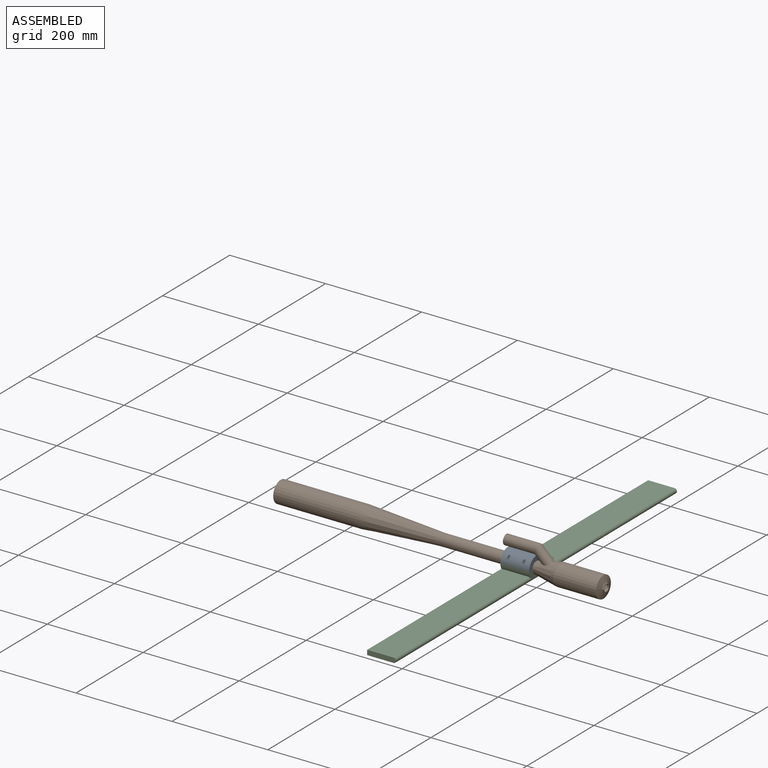
[diagram: assembled view]
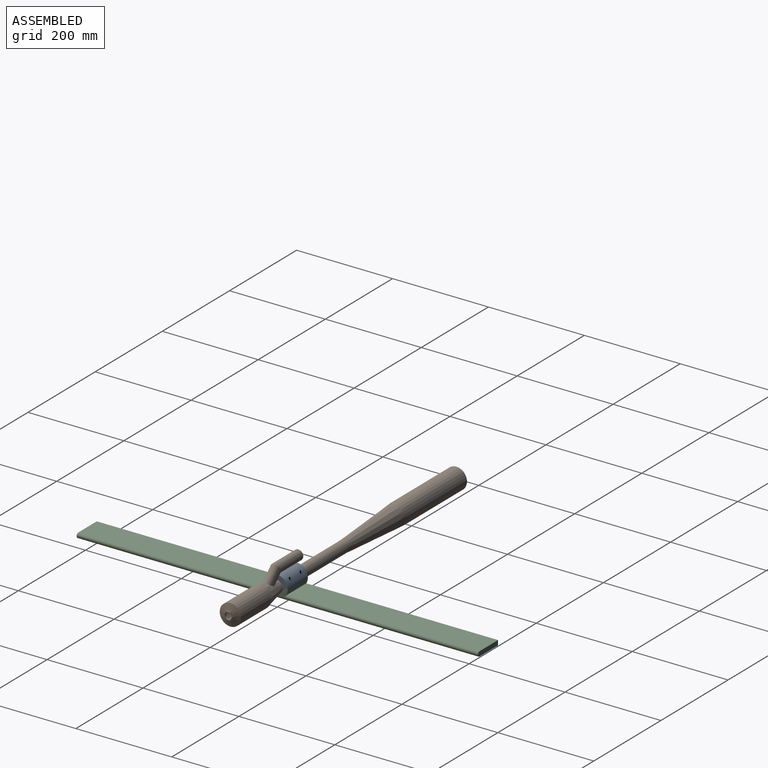
[diagram: assembled view, second angle]
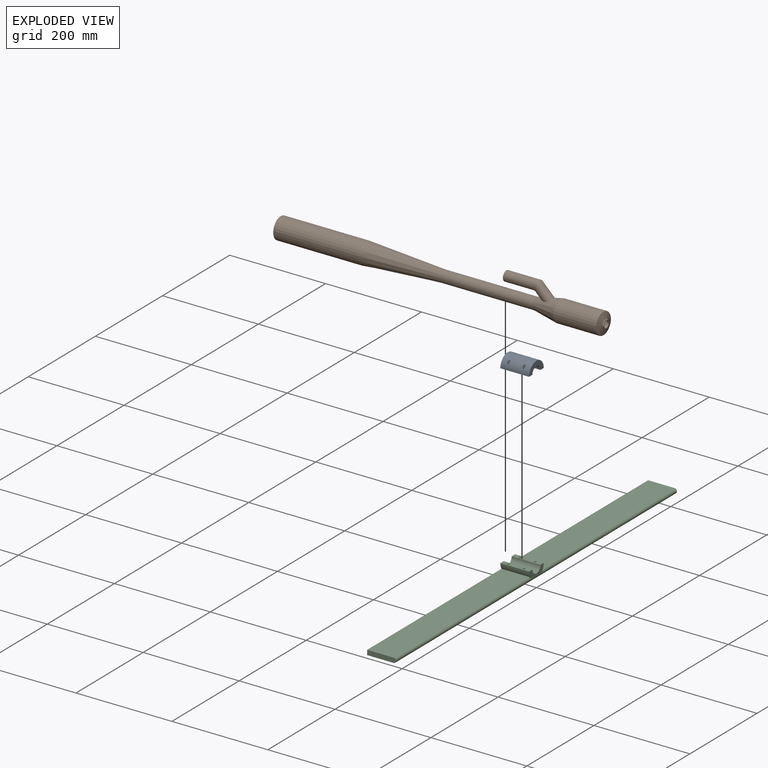
[diagram: exploded view]
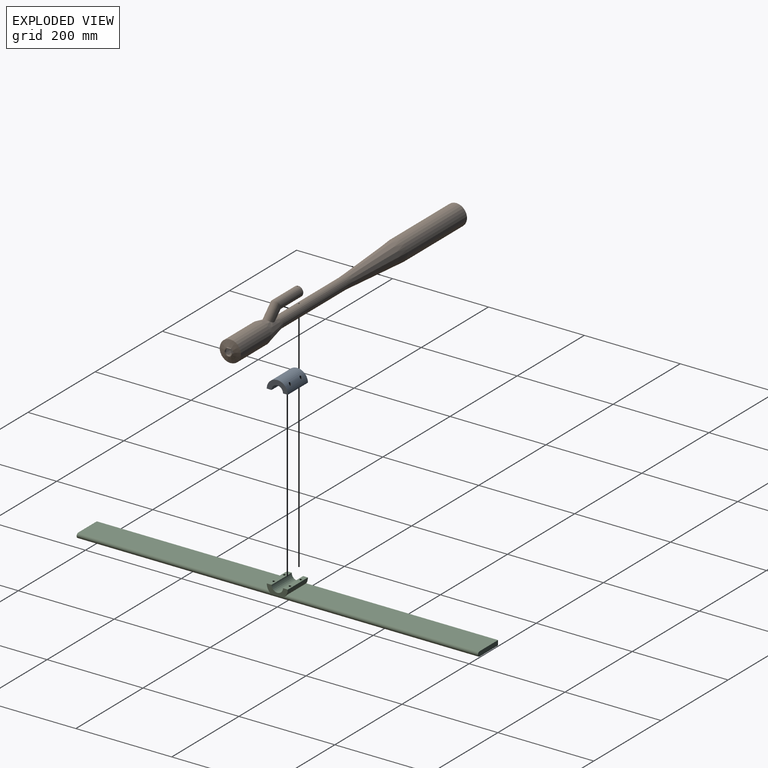
[diagram: exploded view, second angle]
ASSEMBLY  parts=3 mates=2
PART A: 10 faces, bbox 43.9x60x21.9 mm
  f0: cylinder r=21.94mm len=60mm, axis (0,-1,0), area 4008.4mm2, adj f1,f3,f4,f5,f6,f7,f8,f9
  f1: plane 43.88x21.94mm, normal (0,-1,0), area 532.1mm2, adj f0,f2,f4,f5
  f2: cylinder r=11.94mm len=60mm, axis (0,-1,0), area 2250.3mm2, adj f1,f3,f4,f5
  f3: plane 43.88x21.94mm, normal (0,1,0), area 532.1mm2, adj f0,f2,f4,f5
  f4: plane 60x10mm, normal (0,0,1), area 560.7mm2, adj f0,f1,f2,f3,f8,f9
  f5: plane 60x10mm, normal (0,0,1), area 560.7mm2, adj f0,f1,f2,f3,f6,f7
  f6: cylinder r=2.5mm len=16.52mm, axis (0,0,1), area 214.4mm2, adj f0,f5
  f7: cylinder r=2.5mm len=16.52mm, axis (0,0,1), area 214.4mm2, adj f0,f5
  f8: cylinder r=2.5mm len=16.52mm, axis (0,0,1), area 214.4mm2, adj f0,f4
  f9: cylinder r=2.5mm len=16.52mm, axis (0,0,1), area 214.4mm2, adj f0,f4
PART B: 31 faces, bbox 45.1x680.1x68.9 mm
  f0: cone r=22.23mm half-angle=74.1deg, axis (0,1,0), area 1381.2mm2, adj f5,f24,f25,f26,f28,f29,f30
  f1: cone r=22.23mm half-angle=11.4deg, axis (0,-1,0), area 5146.1mm2, adj f4,f5,f16
  f2: cylinder r=22.23mm len=177.8mm, axis (0,1,0), area 24828.7mm2, adj f3,f12
  f3: cone r=11.94mm half-angle=3.6deg, axis (0,1,0), area 17413.8mm2, adj f2,f4
  f4: cylinder r=11.94mm len=193.68mm, axis (0,1,0), area 14527.3mm2, adj f1,f3
  f5: cylinder r=22.23mm len=88.9mm, axis (0,1,0), area 12414.3mm2, adj f0,f1
  f6: cone r=0mm half-angle=74.1deg, axis (0,1,0), area 1229.8mm2, adj f7,f23
  f7: cylinder r=20.62mm len=87.69mm, axis (0,1,0), area 11364.2mm2, adj f6,f8
  f8: cone r=20.62mm half-angle=11.4deg, axis (0,-1,0), area 4677.6mm2, adj f7,f9,f13,f14,f15
  f9: cylinder r=10.34mm len=193.68mm, axis (0,1,0), area 12580.3mm2, adj f8,f10
  f10: cone r=10.34mm half-angle=3.6deg, axis (0,1,0), area 15782.7mm2, adj f9,f11
  f11: cylinder r=20.62mm len=177.8mm, axis (0,1,0), area 23041.2mm2, adj f10,f12
  f12: plane 44.45x44.45mm, normal (0,1,0), area 215.4mm2, adj f2,f11
  f13: cylinder r=10.29mm len=20.57mm, axis (0,0.71,0.71), area 224.7mm2, adj f8,f14
  f14: cone r=10.29mm half-angle=56.4deg, axis (0,-0.71,-0.71), area 61.9mm2, adj f8,f13,f15
  f15: cylinder r=8.69mm len=39.3mm, axis (0,0.71,0.71), area 1820.3mm2, adj f8,f14,f17
  f16: cylinder r=10.29mm len=39.98mm, axis (0,0.71,0.71), area 1771.8mm2, adj f1,f20,f21
  f17: cylinder r=8.69mm len=70.5mm, axis (0,1,0), area 3648.4mm2, adj f15,f18,f22
  f18: plane 20.57x20.57mm, normal (0,1,0), area 95.4mm2, adj f17,f19
  f19: cylinder r=10.29mm len=69.09mm, axis (0,1,0), area 4226mm2, adj f18,f20,f21,f22
  f20: bspline ~20.57x11.75mm, area 83mm2, adj f16,f19
  f21: bspline ~20.57x10.29mm, area 80.9mm2, adj f16,f19
  f22: cylinder r=1mm len=2mm, axis (0,0,1), area 10.1mm2, adj f17,f19
  f23: cylinder r=7mm len=14mm, axis (0,-1,0), area 161.2mm2, adj f6,f27
  f24: plane 8x4.62mm, normal (0.87,0,0.5), area 22.2mm2, adj f0,f25,f27,f28
  f25: plane 9.94x3.34mm, normal (0,0,1), area 22.2mm2, adj f0,f24,f26,f27
  f26: plane 8x4.62mm, normal (-0.87,0,0.5), area 22.2mm2, adj f0,f25,f27,f29
  f27: plane 18.48x16mm, normal (0,-1,0), area 67.8mm2, adj f23,f24,f25,f26,f28,f29,f30
  f28: plane 8x4.62mm, normal (0.87,0,-0.5), area 22.2mm2, adj f0,f24,f27,f30
  f29: plane 8x4.62mm, normal (-0.87,0,-0.5), area 22.2mm2, adj f0,f26,f27,f30
  f30: plane 9.24x2.64mm, normal (0,0,-1), area 22.2mm2, adj f0,f27,f28,f29
PART C: 21 faces, bbox 836.8x60x21.9 mm
  f0: cylinder r=21.94mm len=60mm, axis (0,-1,0), area 764.1mm2, adj f2,f4,f5,f10,f11
  f1: cylinder r=21.94mm len=60mm, axis (0,-1,0), area 764.1mm2, adj f2,f4,f7,f10,f12
  f2: plane 43.88x16.94mm, normal (0,-1,0), area 436.8mm2, adj f0,f1,f3,f10,f11,f12
  f3: cylinder r=11.94mm len=60mm, axis (0,-1,0), area 2250.3mm2, adj f2,f4,f11,f12
  f4: plane 836.81x21.94mm, normal (0,1,0), area 8640.9mm2, adj f0,f1,f3,f5,f6,f7,f8,f9
  f5: plane 400x55mm, normal (0,0,-1), area 22000mm2, adj f0,f4,f8,f10
  f6: plane 836.81x55mm, normal (0,0,1), area 46024.6mm2, adj f4,f8,f9,f10
  f7: plane 400x55mm, normal (0,0,-1), area 22000mm2, adj f1,f4,f9,f10
  f8: plane 60x10mm, normal (-1,0,0), area 589.3mm2, adj f4,f5,f6,f10
  f9: plane 60x10mm, normal (1,0,0), area 589.3mm2, adj f4,f6,f7,f10
  f10: cylinder r=5mm len=836.81mm, axis (1,0,0), area 12878mm2, adj f0,f1,f2,f5,f6,f7,f8,f9
  f11: plane 60x10mm, normal (0,0,-1), area 560.7mm2, adj f0,f2,f3,f4,f17,f19
  f12: plane 60x10mm, normal (0,0,-1), area 560.7mm2, adj f1,f2,f3,f4,f13,f15
  f13: cylinder r=2.5mm len=10mm, axis (0,0,1), area 157.1mm2, adj f12,f14
  f14: plane 5x5mm, normal (0,0,-1), area 19.6mm2, adj f13
  f15: cylinder r=2.5mm len=10mm, axis (0,0,1), area 157.1mm2, adj f12,f16
  f16: plane 5x5mm, normal (0,0,-1), area 19.6mm2, adj f15
  f17: cylinder r=2.5mm len=10mm, axis (0,0,1), area 157.1mm2, adj f11,f18
  f18: plane 5x5mm, normal (0,0,-1), area 19.6mm2, adj f17
  f19: cylinder r=2.5mm len=10mm, axis (0,0,1), area 157.1mm2, adj f11,f20
  f20: plane 5x5mm, normal (0,0,-1), area 19.6mm2, adj f19
PLACE A rot(axis=(0.71,0.71,0),180deg) t=(100,0,0)mm
PLACE B rot(axis=(0,0,1),90deg) t=(-192.09,0,0)mm
PLACE C rot(axis=(0.71,-0.71,0),180deg) t=(-160,0,0)mm
MATE fastened C.f0 <-> B.f0  axis (1,0,0) through (0,0,0)mm
MATE fastened A.f6 <-> C.f17  axis (0,0,-1) through (-14,16.94,0)mm
